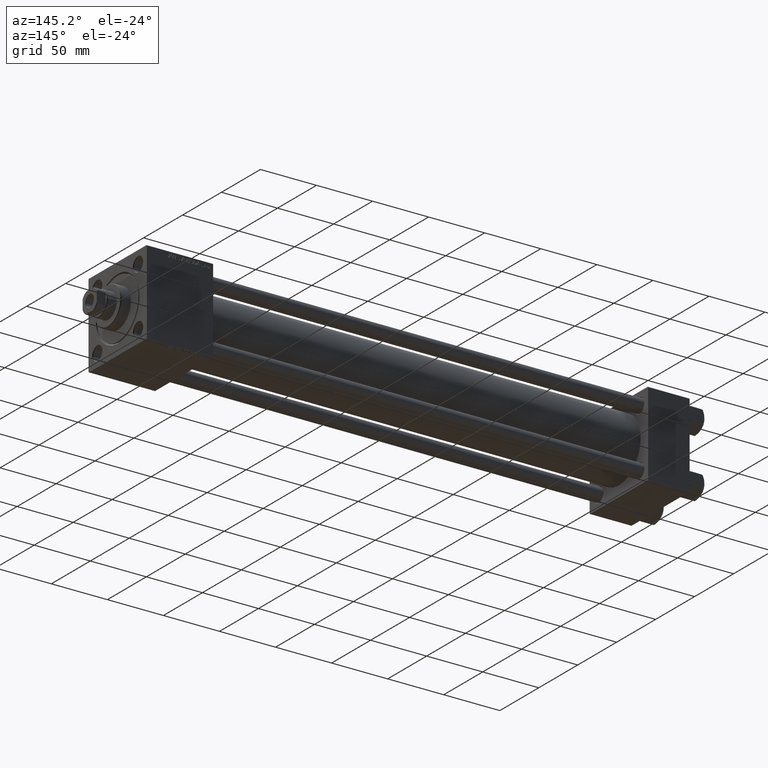
[diagram: clean part render]
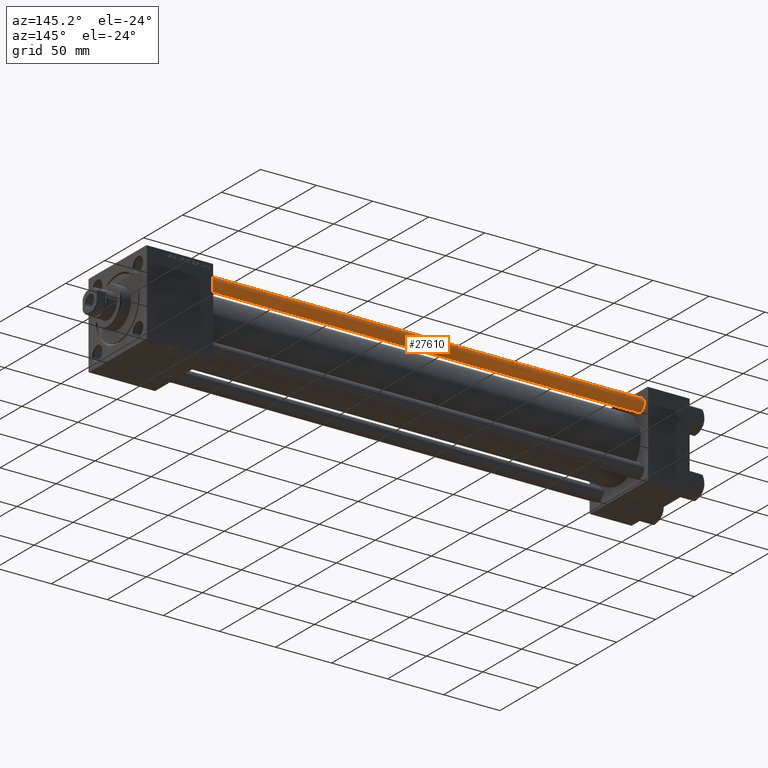
[diagram: same view with one face highlighted and labeled with its STEP entity id]
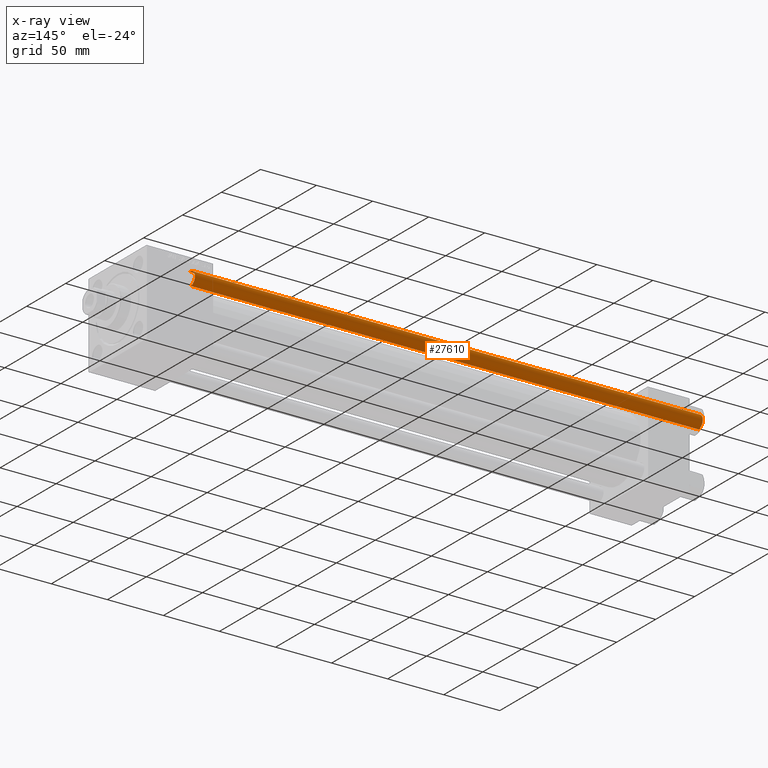
[diagram: x-ray of the same camera — body ghosted, the highlighted face saturated]
A machine part, auxiliary view. The second image highlights one B-rep face of the part: STEP entity #27610.
The next image is the same camera in x-ray: the body ghosted, the highlighted face saturated — about 0% of this face is hidden behind the body in this view.
In plain terms, the highlighted cylindrical surface (edge-blend (fillet) strip) has radius 6 mm, axis along (-1, 0, 0).
Its self-contained STEP definition (entity closure, byte-faithful):
#3131 = LINE ( 'NONE', #22651, #46469 ) ;
#4874 = LINE ( 'NONE', #28218, #29736 ) ;
#5929 = CIRCLE ( 'NONE', #42411, 6.000000000000000888 ) ;
#7181 = VERTEX_POINT ( 'NONE', #49663 ) ;
#7228 = DIRECTION ( 'NONE',  ( -0.000000000000000000, -0.000000000000000000, 1.000000000000000000 ) ) ;
#7445 = DIRECTION ( 'NONE',  ( -0.000000000000000000, -0.000000000000000000, -1.000000000000000000 ) ) ;
#7736 = CARTESIAN_POINT ( 'NONE',  ( 0.000000000000000000, 0.000000000000000000, 0.5000000000004445333 ) ) ;
#7773 = AXIS2_PLACEMENT_3D ( 'NONE', #37067, #33262, #41372 ) ;
#8543 = ORIENTED_EDGE ( 'NONE', *, *, #30547, .F. ) ;
#13614 = CARTESIAN_POINT ( 'NONE',  ( 0.000000000000000000, 0.000000000000000000, 453.5000000000002842 ) ) ;
#16356 = VERTEX_POINT ( 'NONE', #24254 ) ;
#16937 = CARTESIAN_POINT ( 'NONE',  ( -6.000000000000000888, 0.000000000000000000, 453.5000000000002842 ) ) ;
#17641 = AXIS2_PLACEMENT_3D ( 'NONE', #7736, #7228, #38181 ) ;
#21170 = ORIENTED_EDGE ( 'NONE', *, *, #37912, .T. ) ;
#22094 = EDGE_CURVE ( 'NONE', #38403, #16356, #5929, .T. ) ;
#22651 = CARTESIAN_POINT ( 'NONE',  ( 6.000000000000000888, 7.347880794884119736E-16, 454.0000000000000000 ) ) ;
#23221 = EDGE_CURVE ( 'NONE', #16356, #41095, #3131, .T. ) ;
#24254 = CARTESIAN_POINT ( 'NONE',  ( 6.000000000000000888, 7.347880794884119736E-16, 453.5000000000002842 ) ) ;
#26561 = CIRCLE ( 'NONE', #17641, 6.000000000000000888 ) ;
#27610 = ADVANCED_FACE ( 'NONE', ( #44695 ), #29721, .T. ) ;
#28218 = CARTESIAN_POINT ( 'NONE',  ( -6.000000000000000888, 0.000000000000000000, 454.0000000000000000 ) ) ;
#28459 = CARTESIAN_POINT ( 'NONE',  ( 6.000000000000000888, 7.347880794884119736E-16, 0.5000000000004445333 ) ) ;
#29721 = CYLINDRICAL_SURFACE ( 'NONE', #7773, 6.000000000000000888 ) ;
#29736 = VECTOR ( 'NONE', #39151, 1000.000000000000000 ) ;
#30547 = EDGE_CURVE ( 'NONE', #38403, #7181, #4874, .T. ) ;
#33262 = DIRECTION ( 'NONE',  ( -0.000000000000000000, -0.000000000000000000, -1.000000000000000000 ) ) ;
#36188 = DIRECTION ( 'NONE',  ( 1.000000000000000000, 0.000000000000000000, 0.000000000000000000 ) ) ;
#37067 = CARTESIAN_POINT ( 'NONE',  ( 0.000000000000000000, 0.000000000000000000, 454.0000000000000000 ) ) ;
#37912 = EDGE_CURVE ( 'NONE', #41095, #7181, #26561, .T. ) ;
#38181 = DIRECTION ( 'NONE',  ( 1.000000000000000000, 0.000000000000000000, 0.000000000000000000 ) ) ;
#38403 = VERTEX_POINT ( 'NONE', #16937 ) ;
#39151 = DIRECTION ( 'NONE',  ( -0.000000000000000000, -0.000000000000000000, -1.000000000000000000 ) ) ;
#40066 = EDGE_LOOP ( 'NONE', ( #43512, #49745, #21170, #8543 ) ) ;
#41095 = VERTEX_POINT ( 'NONE', #28459 ) ;
#41372 = DIRECTION ( 'NONE',  ( -1.000000000000000000, 0.000000000000000000, 0.000000000000000000 ) ) ;
#42411 = AXIS2_PLACEMENT_3D ( 'NONE', #13614, #48395, #36188 ) ;
#43512 = ORIENTED_EDGE ( 'NONE', *, *, #22094, .T. ) ;
#44695 = FACE_OUTER_BOUND ( 'NONE', #40066, .T. ) ;
#46469 = VECTOR ( 'NONE', #7445, 1000.000000000000000 ) ;
#48395 = DIRECTION ( 'NONE',  ( 0.000000000000000000, 0.000000000000000000, -1.000000000000000000 ) ) ;
#49663 = CARTESIAN_POINT ( 'NONE',  ( -6.000000000000000888, 0.000000000000000000, 0.5000000000004445333 ) ) ;
#49745 = ORIENTED_EDGE ( 'NONE', *, *, #23221, .T. ) ;